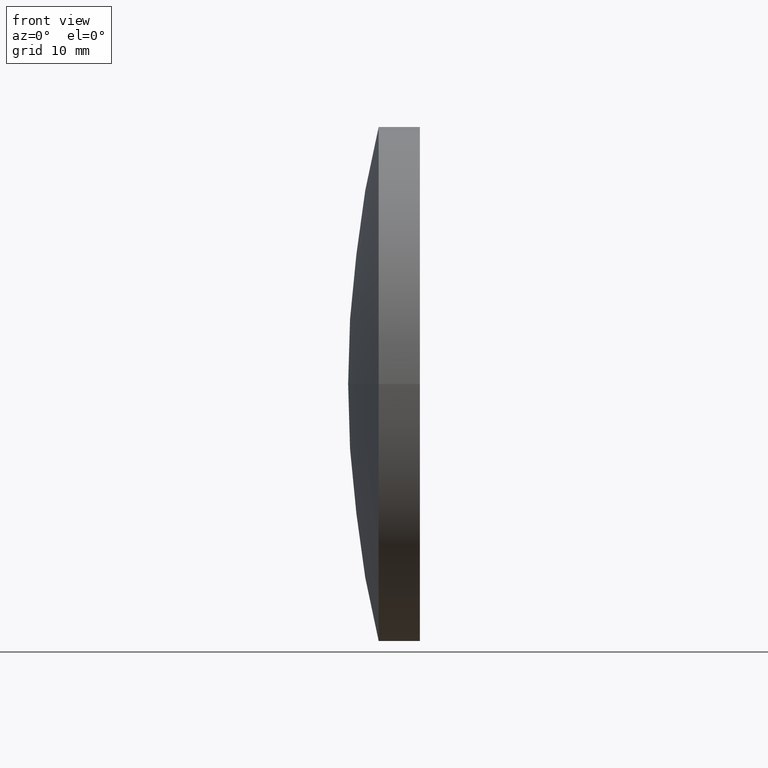
[diagram: clean part render]
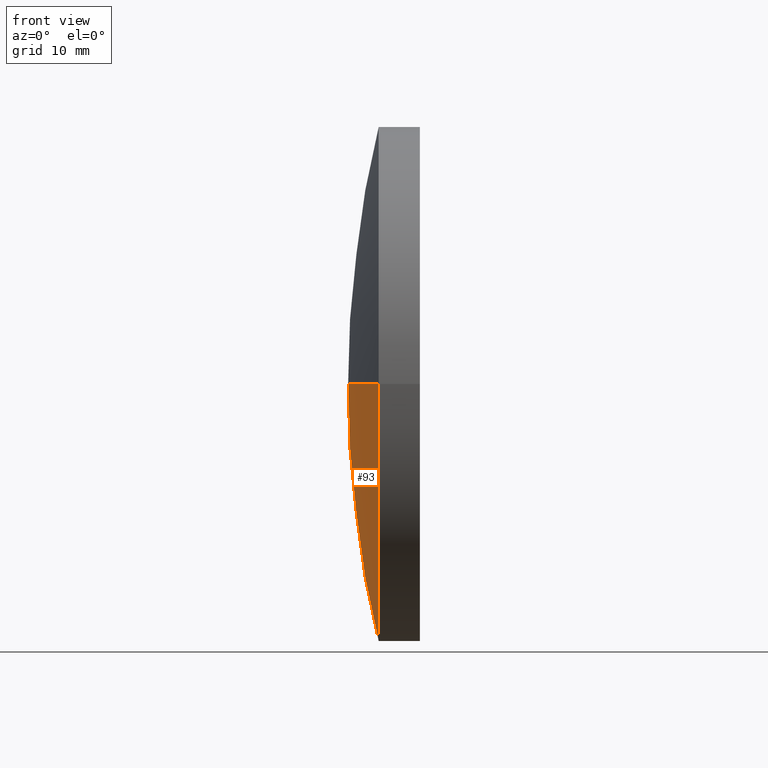
[diagram: same view with one face highlighted and labeled with its STEP entity id]
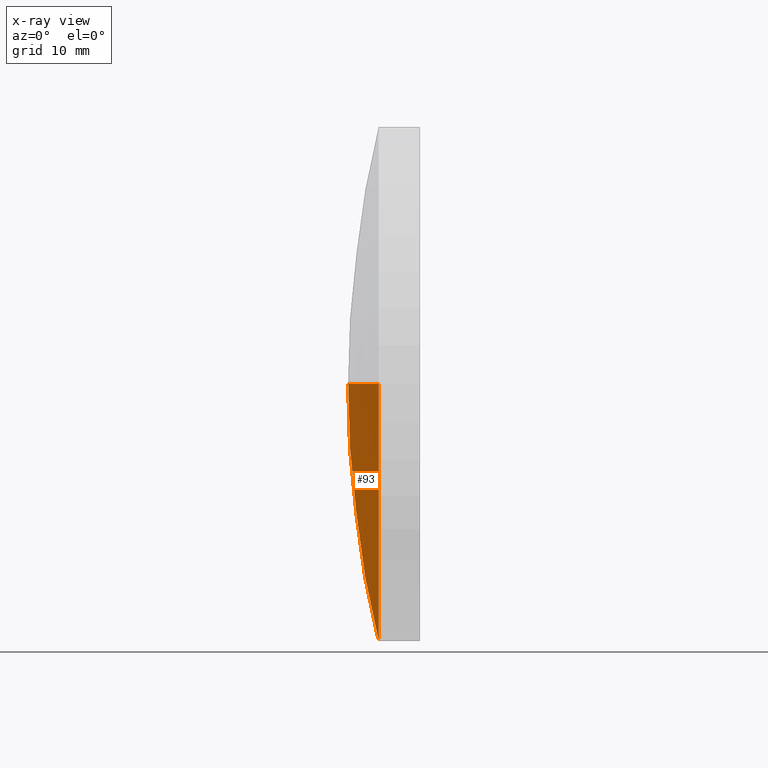
[diagram: x-ray of the same camera — body ghosted, the highlighted face saturated]
A machine part, front view. The second image highlights one B-rep face of the part: STEP entity #93.
The next image is the same camera in x-ray: the body ghosted, the highlighted face saturated — about 0% of this face is hidden behind the body in this view.
In plain terms, the highlighted spherical surface has radius 107 mm.
Its self-contained STEP definition (entity closure, byte-faithful):
#4 = DIRECTION ( 'NONE',  ( 1.110223024625161100E-015, -1.000000000000000000, 0.0000000000000000000 ) ) ;
#7 = AXIS2_PLACEMENT_3D ( 'NONE', #153, #66, #132 ) ;
#8 = CARTESIAN_POINT ( 'NONE',  ( 245.1989956717489200, 130.4336809418805100, 0.0000000000000000000 ) ) ;
#12 = CIRCLE ( 'NONE', #109, 24.99999999999989700 ) ;
#14 = FACE_OUTER_BOUND ( 'NONE', #65, .T. ) ;
#16 = CARTESIAN_POINT ( 'NONE',  ( 352.1989956717488900, 130.4336809418805700, 0.0000000000000000000 ) ) ;
#19 = DIRECTION ( 'NONE',  ( -8.496118506040342700E-032, 1.224646799147353200E-016, -1.000000000000000000 ) ) ;
#20 = DIRECTION ( 'NONE',  ( -1.000000000000000000, -6.937607244762875000E-016, -0.0000000000000000000 ) ) ;
#27 = EDGE_CURVE ( 'NONE', #169, #152, #76, .T. ) ;
#32 = DIRECTION ( 'NONE',  ( -0.0000000000000000000, 0.0000000000000000000, -1.000000000000000000 ) ) ;
#34 = DIRECTION ( 'NONE',  ( -5.187958058996059700E-016, 1.000000000000000000, 0.0000000000000000000 ) ) ;
#44 = EDGE_CURVE ( 'NONE', #144, #152, #162, .T. ) ;
#60 = CARTESIAN_POINT ( 'NONE',  ( 352.1989956717488900, 130.4336809418805700, 0.0000000000000000000 ) ) ;
#65 = EDGE_LOOP ( 'NONE', ( #133, #187, #71 ) ) ;
#66 = DIRECTION ( 'NONE',  ( -0.0000000000000000000, 0.0000000000000000000, 1.000000000000000000 ) ) ;
#68 = EDGE_CURVE ( 'NONE', #144, #169, #12, .T. ) ;
#71 = ORIENTED_EDGE ( 'NONE', *, *, #44, .F. ) ;
#76 = CIRCLE ( 'NONE', #173, 106.9999999999999900 ) ;
#93 = ADVANCED_FACE ( 'NONE', ( #14 ), #116, .T. ) ;
#107 = CARTESIAN_POINT ( 'NONE',  ( 248.1605412426293100, 130.4336809418806500, 0.0000000000000000000 ) ) ;
#108 = DIRECTION ( 'NONE',  ( 0.0000000000000000000, 1.000000000000000000, 1.224646799147353200E-016 ) ) ;
#109 = AXIS2_PLACEMENT_3D ( 'NONE', #107, #20, #4 ) ;
#116 = SPHERICAL_SURFACE ( 'NONE', #177, 106.9999999999999900 ) ;
#132 = DIRECTION ( 'NONE',  ( 1.000000000000000000, 0.0000000000000000000, 0.0000000000000000000 ) ) ;
#133 = ORIENTED_EDGE ( 'NONE', *, *, #68, .T. ) ;
#134 = CARTESIAN_POINT ( 'NONE',  ( 248.1605412426292500, 155.4336809418805400, 0.0000000000000000000 ) ) ;
#142 = CARTESIAN_POINT ( 'NONE',  ( 248.1605412426293100, 105.4336809418806200, -3.061616997868368400E-015 ) ) ;
#144 = VERTEX_POINT ( 'NONE', #134 ) ;
#152 = VERTEX_POINT ( 'NONE', #8 ) ;
#153 = CARTESIAN_POINT ( 'NONE',  ( 352.1989956717488900, 130.4336809418805700, 0.0000000000000000000 ) ) ;
#162 = CIRCLE ( 'NONE', #7, 106.9999999999999900 ) ;
#169 = VERTEX_POINT ( 'NONE', #142 ) ;
#173 = AXIS2_PLACEMENT_3D ( 'NONE', #16, #19, #108 ) ;
#177 = AXIS2_PLACEMENT_3D ( 'NONE', #60, #32, #34 ) ;
#187 = ORIENTED_EDGE ( 'NONE', *, *, #27, .T. ) ;